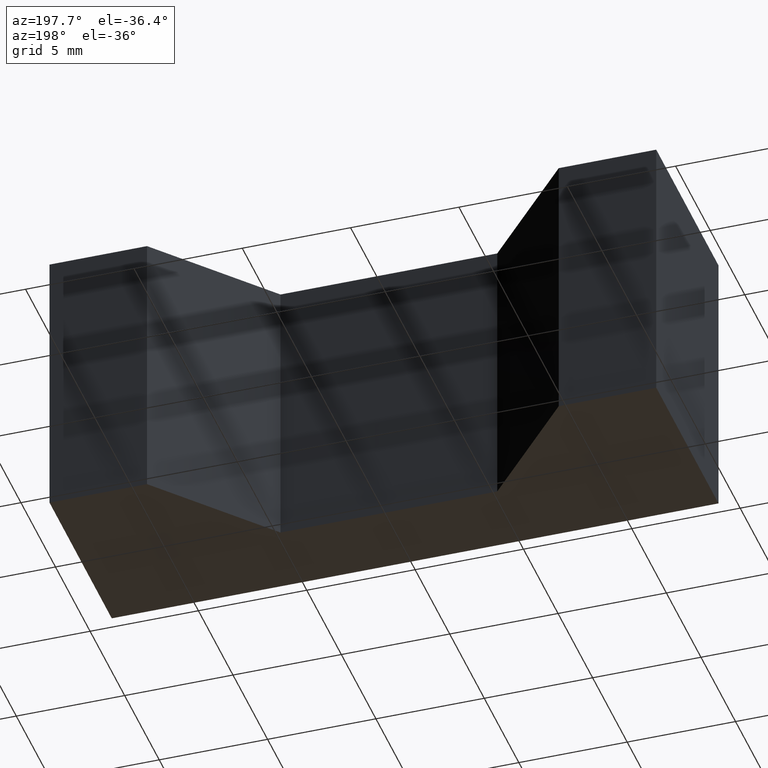
[diagram: clean part render]
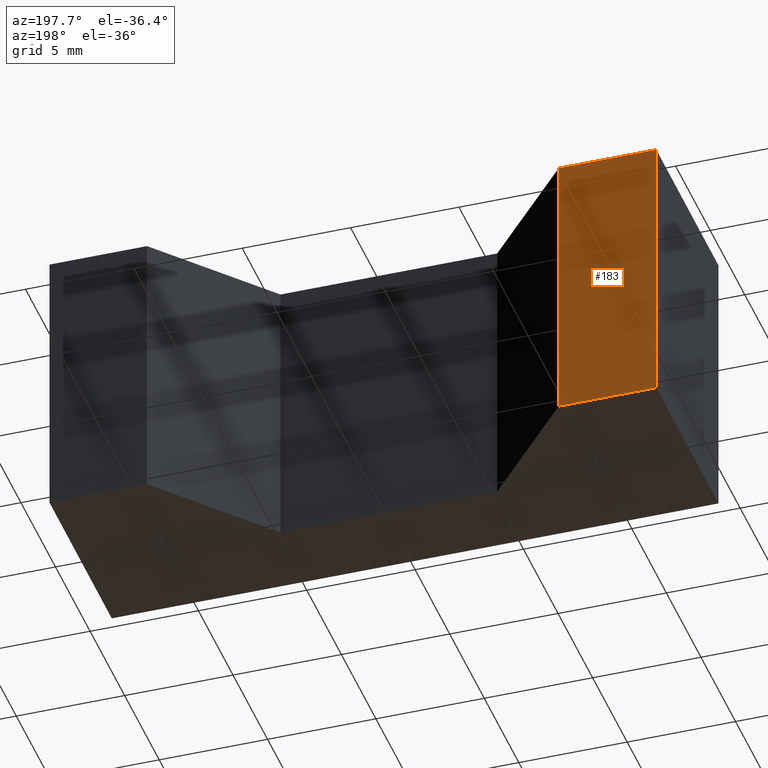
[diagram: same view with one face highlighted and labeled with its STEP entity id]
A machine part, auxiliary view. The second image highlights one B-rep face of the part: STEP entity #183.
In plain terms, the highlighted planar face has unit normal (0, 1, 0).
Its self-contained STEP definition (entity closure, byte-faithful):
#17=FACE_OUTER_BOUND('',#27,.T.);
#27=EDGE_LOOP('',(#128,#129,#130,#131));
#37=LINE('',#277,#61);
#40=LINE('',#283,#64);
#41=LINE('',#285,#65);
#42=LINE('',#286,#66);
#61=VECTOR('',#230,10.);
#64=VECTOR('',#235,10.);
#65=VECTOR('',#236,10.);
#66=VECTOR('',#237,10.);
#85=VERTEX_POINT('',#274);
#86=VERTEX_POINT('',#276);
#88=VERTEX_POINT('',#282);
#89=VERTEX_POINT('',#284);
#101=EDGE_CURVE('',#86,#85,#37,.T.);
#104=EDGE_CURVE('',#85,#88,#40,.T.);
#105=EDGE_CURVE('',#89,#88,#41,.T.);
#106=EDGE_CURVE('',#86,#89,#42,.T.);
#128=ORIENTED_EDGE('',*,*,#104,.T.);
#129=ORIENTED_EDGE('',*,*,#105,.F.);
#130=ORIENTED_EDGE('',*,*,#106,.F.);
#131=ORIENTED_EDGE('',*,*,#101,.T.);
#173=PLANE('',#216);
#183=ADVANCED_FACE('',(#17),#173,.T.);
#216=AXIS2_PLACEMENT_3D('',#281,#233,#234);
#230=DIRECTION('',(0.,0.,1.));
#233=DIRECTION('center_axis',(0.,1.,0.));
#234=DIRECTION('ref_axis',(0.,0.,1.));
#235=DIRECTION('',(1.,0.,0.));
#236=DIRECTION('',(0.,0.,1.));
#237=DIRECTION('',(1.,0.,0.));
#274=CARTESIAN_POINT('',(-14.,9.,13.));
#276=CARTESIAN_POINT('',(-14.,9.,0.));
#277=CARTESIAN_POINT('',(-14.,9.,0.));
#281=CARTESIAN_POINT('Origin',(-14.,9.,0.));
#282=CARTESIAN_POINT('',(-9.5,9.,13.));
#283=CARTESIAN_POINT('',(-14.,9.,13.));
#284=CARTESIAN_POINT('',(-9.5,9.,0.));
#285=CARTESIAN_POINT('',(-9.5,9.,0.));
#286=CARTESIAN_POINT('',(-14.,9.,0.));